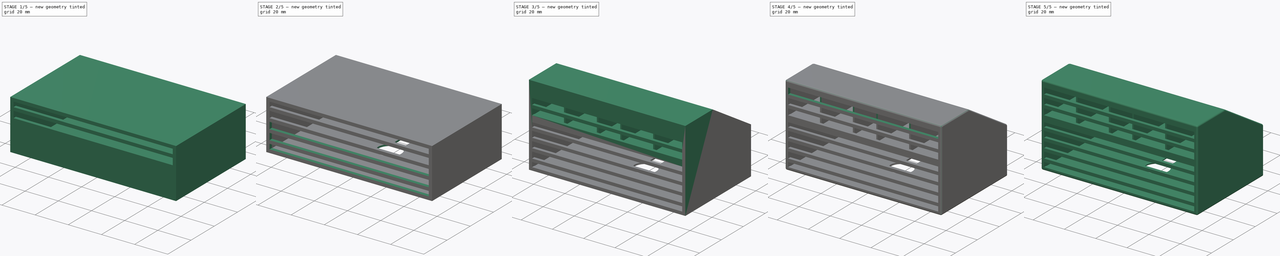
[diagram: build sequence overview — one tinted view per stage of 5, left to right]
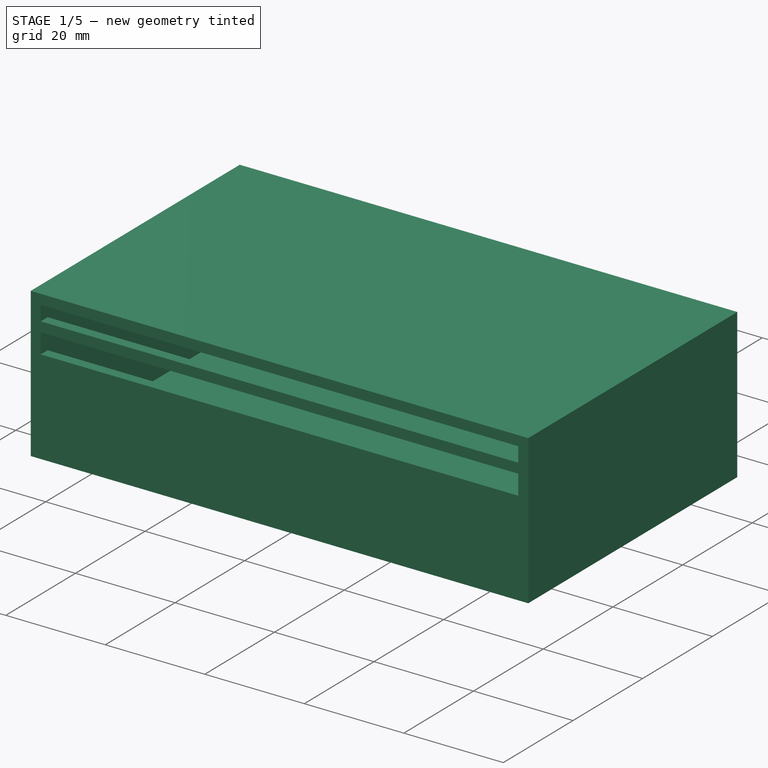
[diagram: stage 1 of 5 — iso view after this stage's code; geometry added in this stage tinted green]
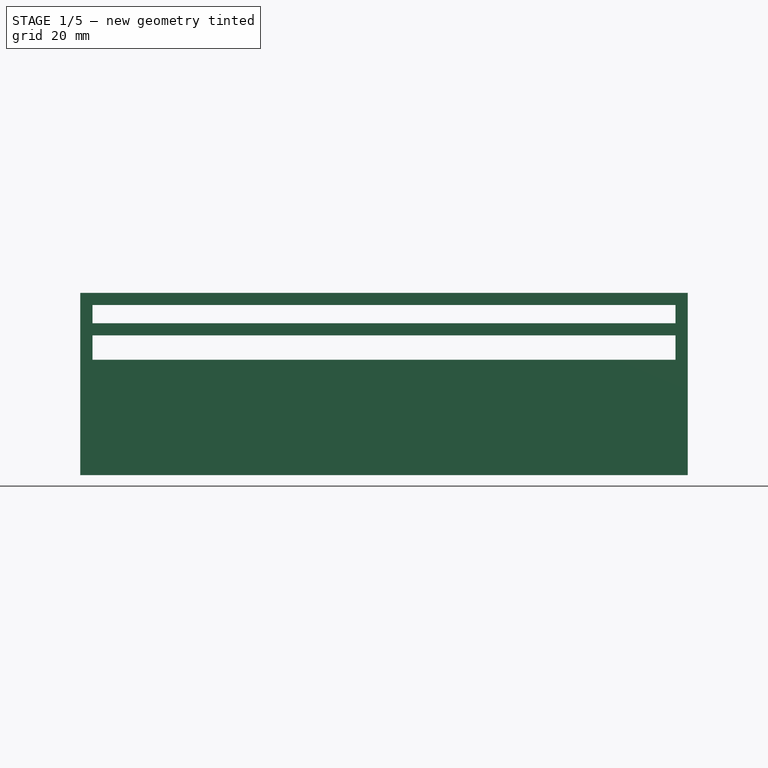
[diagram: stage 1 of 5 — front view after this stage's code; geometry added in this stage tinted green]
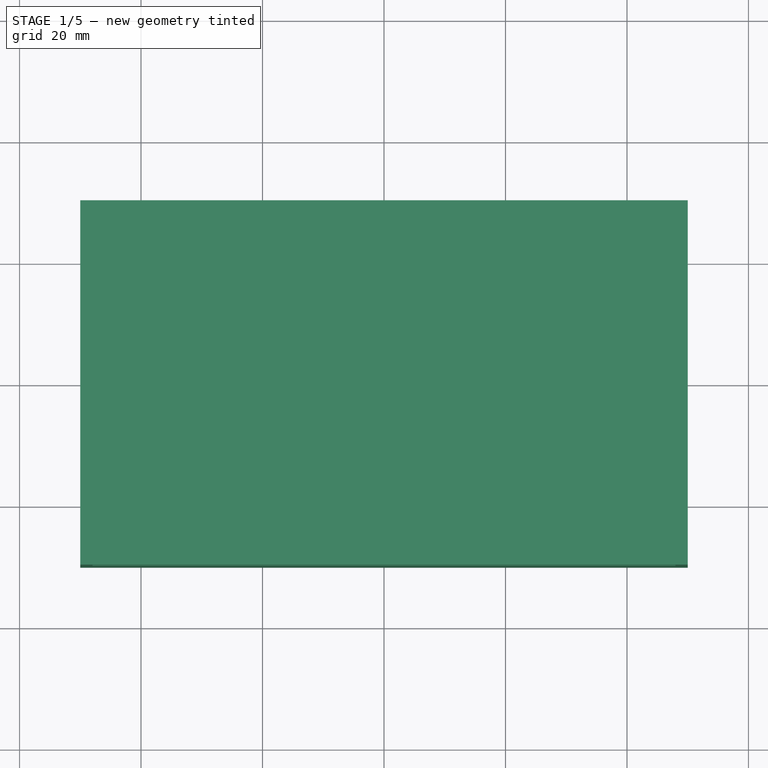
[diagram: stage 1 of 5 — top view after this stage's code; geometry added in this stage tinted green]
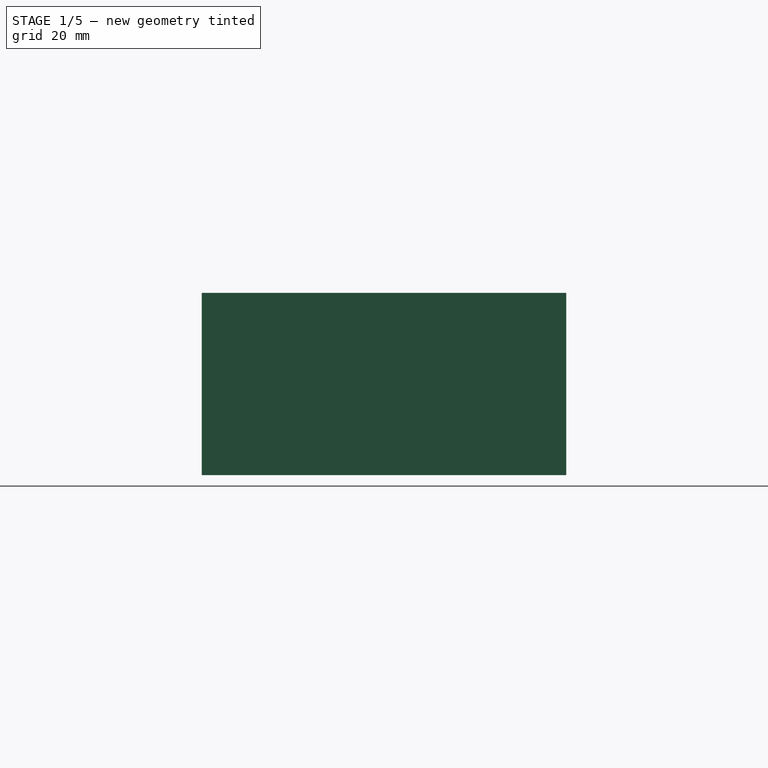
[diagram: stage 1 of 5 — right view after this stage's code; geometry added in this stage tinted green]
FCSTD DOCUMENT  (FreeCAD 0.19R24291 (Git))
Label: bathroom_box
License: All rights reserved
LicenseURL: http://en.wikipedia.org/wiki/All_rights_reserved
objects: Sketcher::SketchObject×13, PartDesign::Pocket×11, PartDesign::Chamfer×5, PartDesign::Pad×2, PartDesign::Fillet×2, PartDesign::Body×1
note: 54 computed .brp shape members not serialized (recipe doc carries the construction recipe); baked Part::Feature solids carry a one-line shape summary decoded from their .brp

FEATURE [Sketcher::SketchObject] Sketch
  FullyConstrained = true
  MapMode = 5
  Support = -> [XY_Plane]
  sketch-geometry (4):
    g0: LineSegment StartX=-50 StartY=30 StartZ=0 EndX=50 EndY=30 EndZ=0
    g1: LineSegment StartX=50 StartY=30 StartZ=0 EndX=50 EndY=-30 EndZ=0
    g2: LineSegment StartX=50 StartY=-30 StartZ=0 EndX=-50 EndY=-30 EndZ=0
    g3: LineSegment StartX=-50 StartY=-30 StartZ=0 EndX=-50 EndY=30 EndZ=0
  constraints (10):
    c: Coincident(g0,g1)
    c: Coincident(g1,g2)
    c: Coincident(g2,g3)
    c: Coincident(g3,g0)
    c: Horizontal(g2)
    c: Vertical(g3)
    c: DistanceY(g1,g1) = 60
    c: DistanceX(g0,g0) = 100
    c: Symmetric(g1,g0,g-1)
    c: Symmetric(g0,g0,g-2)
FEATURE [PartDesign::Pad] Pad  label="Pad_main"
  Direction = (1,1,1)
  Length = 30
  Length2 = 100
  Profile = -> Sketch
  Refine = true
  Type = 0
FEATURE [Sketcher::SketchObject] Sketch001
  AttachmentOffset = pos=(0,0,-30) rot=(0,0,1;0rad)
  ExternalGeometry = -> [Pad]
  FullyConstrained = true
  MapMode = 5
  Placement = pos=(0,30,-6.7e-15) rot=(1,0,0;1.5708rad)
  Support = -> [XZ_Plane]
  sketch-geometry (4):
    g0: LineSegment StartX=-49 StartY=29 StartZ=0 EndX=49 EndY=29 EndZ=0
    g1: LineSegment StartX=49 StartY=29 StartZ=0 EndX=49 EndY=1 EndZ=0
    g2: LineSegment StartX=49 StartY=1 StartZ=0 EndX=-49 EndY=1 EndZ=0
    g3: LineSegment StartX=-49 StartY=1 StartZ=0 EndX=-49 EndY=29 EndZ=0
  constraints (11):
    c: Coincident(g0,g1)
    c: Coincident(g1,g2)
    c: Coincident(g2,g3)
    c: Coincident(g3,g0)
    c: Horizontal(g2)
    c: Vertical(g1)
    c: Vertical(g3)
    c: Symmetric(g0,g0,g-2)
    c: DistanceY(g0,g-3) = 1
    c: DistanceX(g0,g-3) = 1
    c: DistanceY(g-4,g1) = 1
FEATURE [PartDesign::Pocket] Pocket  label="Pocket_main"
  BaseFeature = -> Pad
  Length = 58
  Length2 = 100
  Profile = -> Sketch001
  Refine = true
  Reversed = true
  Type = 0
FEATURE [Sketcher::SketchObject] Sketch002
  AttachmentOffset = pos=(0,0,30) rot=(0,0,1;0rad)
  ExternalGeometry = -> [Pocket]
  FullyConstrained = true
  MapMode = 5
  Placement = pos=(0,-30,6.7e-15) rot=(1,0,0;1.5708rad)
  Support = -> [XZ_Plane]
  sketch-geometry (4):
    g0: LineSegment StartX=-48 StartY=28 StartZ=0 EndX=48 EndY=28 EndZ=0
    g1: LineSegment StartX=48 StartY=28 StartZ=0 EndX=48 EndY=25 EndZ=0
    g2: LineSegment StartX=48 StartY=25 StartZ=0 EndX=-48 EndY=25 EndZ=0
    g3: LineSegment StartX=-48 StartY=25 StartZ=0 EndX=-48 EndY=28 EndZ=0
  constraints (12):
    c: Coincident(g0,g1)
    c: Coincident(g1,g2)
    c: Coincident(g2,g3)
    c: Coincident(g3,g0)
    c: Horizontal(g0)
    c: Horizontal(g2)
    c: Vertical(g1)
    c: Vertical(g3)
    c: DistanceY(g1,g1) = 3
    c: DistanceX(g2,g2) = 96
    c: DistanceX(g0,g-3) = 2
    c: DistanceY(g0,g-3) = 2
FEATURE [PartDesign::Pocket] Pocket001  label="Pocket_bottom_001"
  BaseFeature = -> Pocket
  Length = 5
  Length2 = 100
  Profile = -> Sketch002
  Refine = true
  Type = 1
FEATURE [Sketcher::SketchObject] Sketch003
  AttachmentOffset = pos=(0,0,30) rot=(0,0,1;0rad)
  ExternalGeometry = -> [Pocket001]
  FullyConstrained = true
  MapMode = 5
  Placement = pos=(0,-30,6.7e-15) rot=(1,0,0;1.5708rad)
  Support = -> [XZ_Plane]
  sketch-geometry (4):
    g0: LineSegment StartX=-48 StartY=23 StartZ=0 EndX=48 EndY=23 EndZ=0
    g1: LineSegment StartX=48 StartY=23 StartZ=0 EndX=48 EndY=19 EndZ=0
    g2: LineSegment StartX=48 StartY=19 StartZ=0 EndX=-48 EndY=19 EndZ=0
    g3: LineSegment StartX=-48 StartY=19 StartZ=0 EndX=-48 EndY=23 EndZ=0
  constraints (12):
    c: Coincident(g0,g1)
    c: Coincident(g1,g2)
    c: Coincident(g2,g3)
    c: Coincident(g3,g0)
    c: Horizontal(g0)
    c: Horizontal(g2)
    c: Vertical(g1)
    c: Vertical(g3)
    c: DistanceY(g1,g1) = 4
    c: DistanceX(g2,g2) = 96
    c: DistanceY(g0,g-3) = 7
    c: DistanceX(g0,g-3) = 2
FEATURE [PartDesign::Pocket] Pocket002  label="Pocket_bottom_002"
  BaseFeature = -> Pocket001
  Length = 5
  Length2 = 100
  Profile = -> Sketch003
  Refine = true
  Type = 1
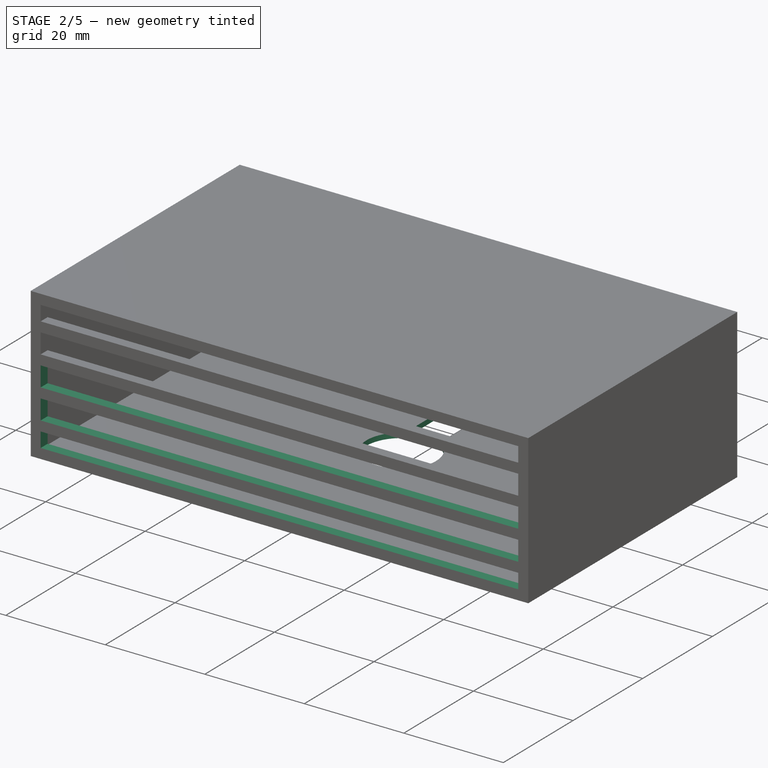
[diagram: stage 2 of 5 — iso view after this stage's code; geometry added in this stage tinted green]
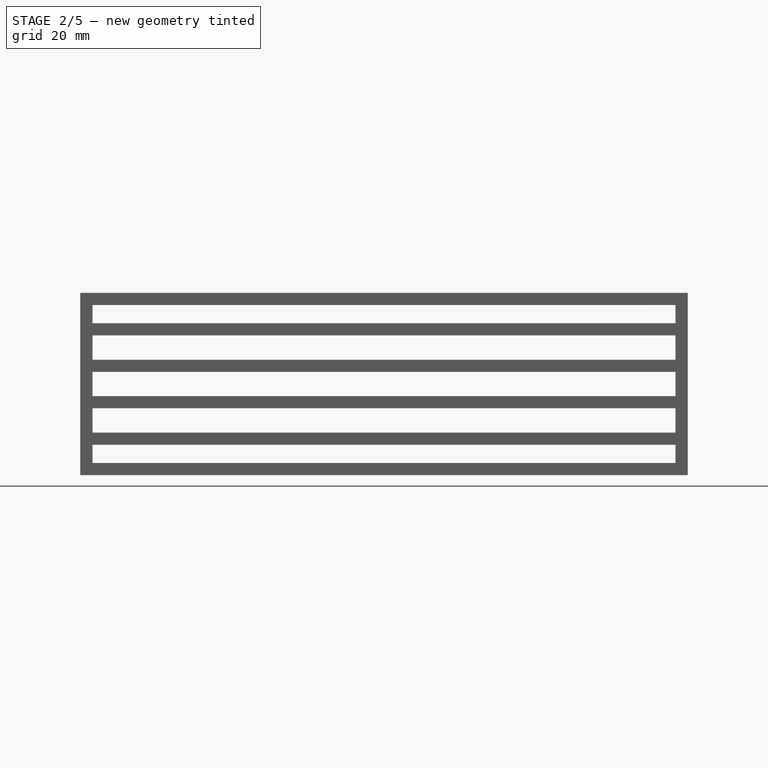
[diagram: stage 2 of 5 — front view after this stage's code; geometry added in this stage tinted green]
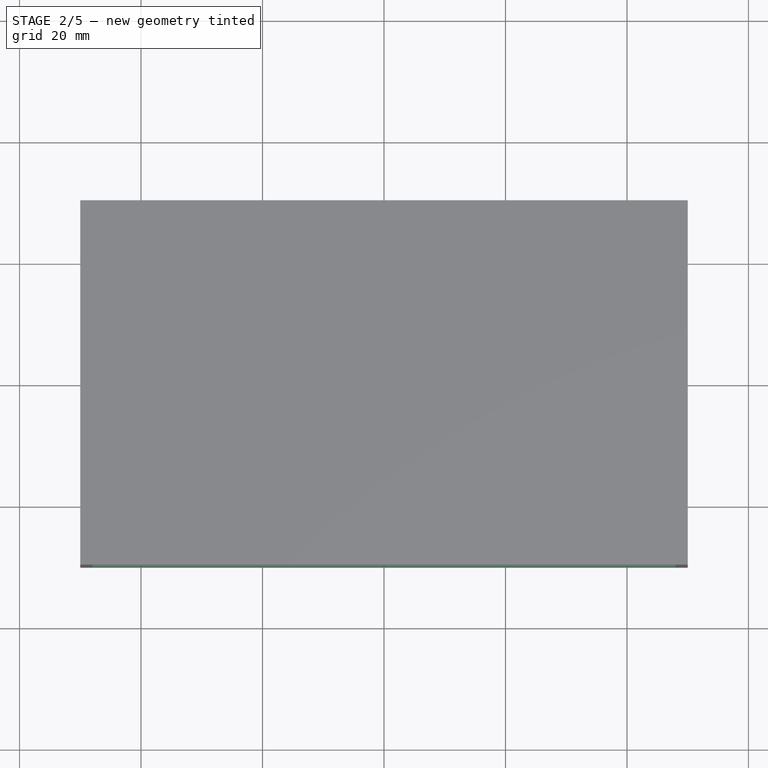
[diagram: stage 2 of 5 — top view after this stage's code; geometry added in this stage tinted green]
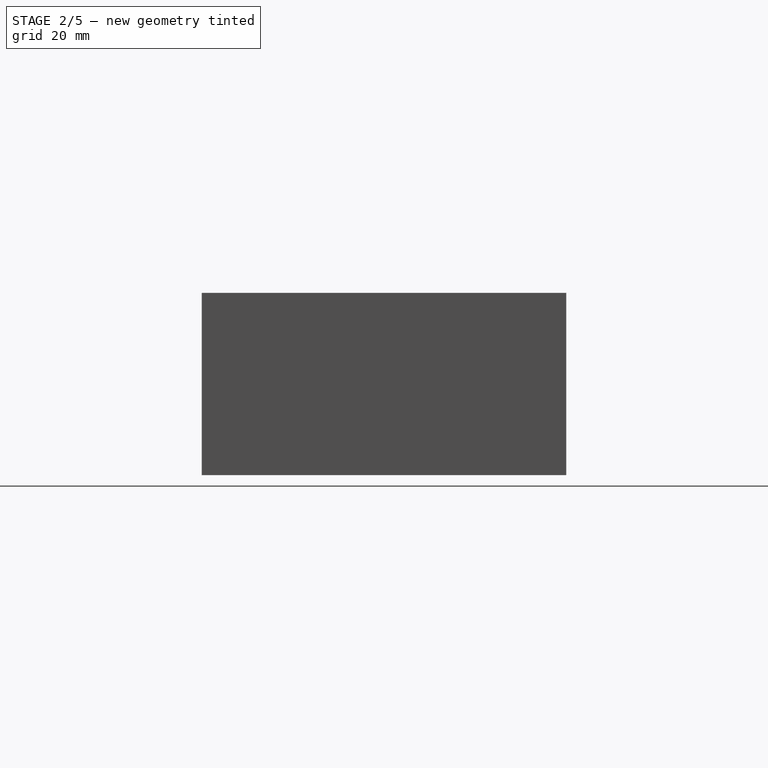
[diagram: stage 2 of 5 — right view after this stage's code; geometry added in this stage tinted green]
FEATURE [Sketcher::SketchObject] Sketch007
  AttachmentOffset = pos=(0,0,30) rot=(0,0,1;0rad)
  ExternalGeometry = -> [Pocket002]
  FullyConstrained = true
  MapMode = 5
  Placement = pos=(0,-30,6.7e-15) rot=(1,0,0;1.5708rad)
  Support = -> [XZ_Plane]
  sketch-geometry (4):
    g0: LineSegment StartX=-48 StartY=17 StartZ=0 EndX=48 EndY=17 EndZ=0
    g1: LineSegment StartX=48 StartY=17 StartZ=0 EndX=48 EndY=13 EndZ=0
    g2: LineSegment StartX=48 StartY=13 StartZ=0 EndX=-48 EndY=13 EndZ=0
    g3: LineSegment StartX=-48 StartY=13 StartZ=0 EndX=-48 EndY=17 EndZ=0
  constraints (12):
    c: Coincident(g0,g1)
    c: Coincident(g1,g2)
    c: Coincident(g2,g3)
    c: Coincident(g3,g0)
    c: Horizontal(g0)
    c: Horizontal(g2)
    c: Vertical(g1)
    c: Vertical(g3)
    c: DistanceY(g1,g1) = 4
    c: DistanceX(g2,g2) = 96
    c: DistanceX(g0,g-3) = 2
    c: DistanceY(g0,g-3) = 13
FEATURE [PartDesign::Pocket] Pocket003  label="Pocket_bottom_003"
  BaseFeature = -> Pocket002
  Length = 5
  Length2 = 100
  Profile = -> Sketch007
  Refine = true
  Type = 1
FEATURE [Sketcher::SketchObject] Sketch008
  AttachmentOffset = pos=(0,0,30) rot=(0,0,1;0rad)
  ExternalGeometry = -> [Pocket002]
  FullyConstrained = true
  MapMode = 5
  Placement = pos=(0,-30,6.7e-15) rot=(1,0,0;1.5708rad)
  Support = -> [XZ_Plane]
  sketch-geometry (4):
    g0: LineSegment StartX=-48 StartY=11 StartZ=0 EndX=48 EndY=11 EndZ=0
    g1: LineSegment StartX=48 StartY=11 StartZ=0 EndX=48 EndY=7 EndZ=0
    g2: LineSegment StartX=48 StartY=7 StartZ=0 EndX=-48 EndY=7 EndZ=0
    g3: LineSegment StartX=-48 StartY=7 StartZ=0 EndX=-48 EndY=11 EndZ=0
  constraints (12):
    c: Coincident(g0,g1)
    c: Coincident(g1,g2)
    c: Coincident(g2,g3)
    c: Coincident(g3,g0)
    c: Horizontal(g0)
    c: Horizontal(g2)
    c: Vertical(g1)
    c: Vertical(g3)
    c: DistanceY(g1,g1) = 4
    c: DistanceX(g2,g2) = 96
    c: DistanceX(g0,g-3) = 2
    c: DistanceY(g0,g-3) = 19
FEATURE [PartDesign::Pocket] Pocket004  label="Pocket_bottom_004"
  BaseFeature = -> Pocket003
  Length = 5
  Length2 = 100
  Profile = -> Sketch008
  Refine = true
  Type = 1
FEATURE [Sketcher::SketchObject] Sketch009
  AttachmentOffset = pos=(0,0,30) rot=(0,0,1;0rad)
  ExternalGeometry = -> [Pocket002]
  FullyConstrained = true
  MapMode = 5
  Placement = pos=(0,-30,6.7e-15) rot=(1,0,0;1.5708rad)
  Support = -> [XZ_Plane]
  sketch-geometry (4):
    g0: LineSegment StartX=-48 StartY=5 StartZ=0 EndX=48 EndY=5 EndZ=0
    g1: LineSegment StartX=48 StartY=5 StartZ=0 EndX=48 EndY=2 EndZ=0
    g2: LineSegment StartX=48 StartY=2 StartZ=0 EndX=-48 EndY=2 EndZ=0
    g3: LineSegment StartX=-48 StartY=2 StartZ=0 EndX=-48 EndY=5 EndZ=0
  constraints (12):
    c: Coincident(g0,g1)
    c: Coincident(g1,g2)
    c: Coincident(g2,g3)
    c: Coincident(g3,g0)
    c: Horizontal(g0)
    c: Horizontal(g2)
    c: Vertical(g1)
    c: Vertical(g3)
    c: DistanceY(g1,g1) = 3
    c: DistanceX(g2,g2) = 96
    c: DistanceX(g0,g-3) = 2
    c: DistanceY(g0,g-3) = 25
FEATURE [PartDesign::Pocket] Pocket005  label="Pocket_bottom_005"
  BaseFeature = -> Pocket004
  Length = 5
  Length2 = 100
  Profile = -> Sketch009
  Refine = true
  Type = 1
FEATURE [Sketcher::SketchObject] Sketch010
  FullyConstrained = true
  MapMode = 5
  Support = -> [XY_Plane]
  sketch-geometry (4):
    g0: LineSegment StartX=-3.5 StartY=21.0622 StartZ=0 EndX=3.5 EndY=21.0622 EndZ=0
    g1: LineSegment StartX=3.5 StartY=21.0622 StartZ=0 EndX=3.5 EndY=11.0622 EndZ=0
    g2: ArcOfCircle CenterX=0 CenterY=5 CenterZ=0 NormalX=0 NormalY=0 NormalZ=1 AngleXU=0 Radius=7 StartAngle=2.0944 EndAngle=7.33038
    g3: LineSegment StartX=-3.5 StartY=11.0622 StartZ=0 EndX=-3.5 EndY=21.0622 EndZ=0
  constraints (12):
    c: Coincident(g0,g1)
    c: Vertical(g1)
    c: Coincident(g2,g3)
    c: Coincident(g3,g0)
    c: Vertical(g3)
    c: Symmetric(g0,g0,g-2)
    c: DistanceX(g0,g0) = 7
    c: Coincident(g2,g1)
    c: PointOnObject(g2,g-2)
    c: Radius(g2) = 7
    c: DistanceY(g2,g-1) = -5
    c: DistanceY(g1,g0) = 10
FEATURE [PartDesign::Pocket] Pocket006  label="Pocket_hanger"
  BaseFeature = -> Pocket005
  Length = 2
  Length2 = 100
  Profile = -> Sketch010
  Refine = true
  Reversed = true
  Type = 0
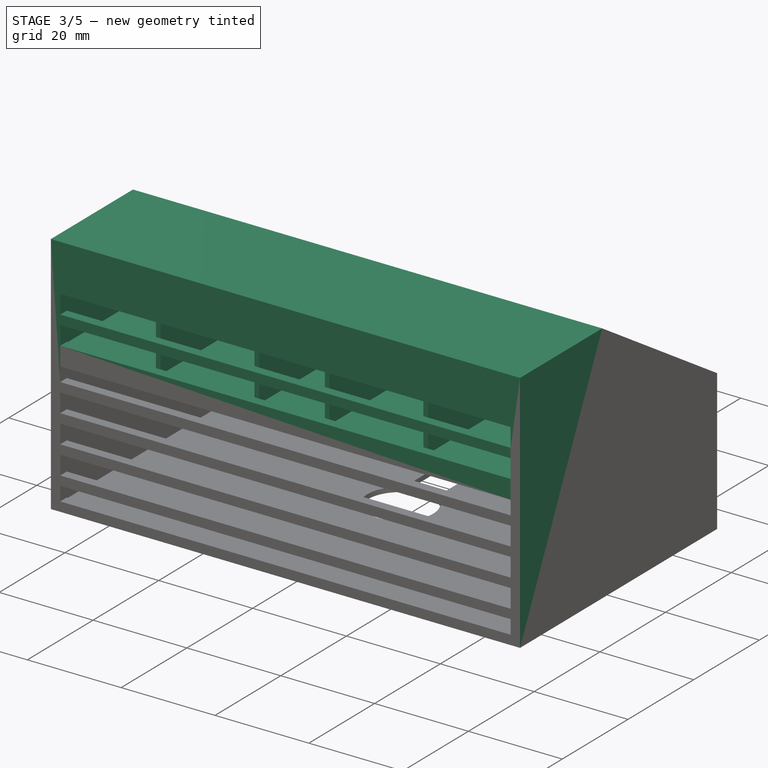
[diagram: stage 3 of 5 — iso view after this stage's code; geometry added in this stage tinted green]
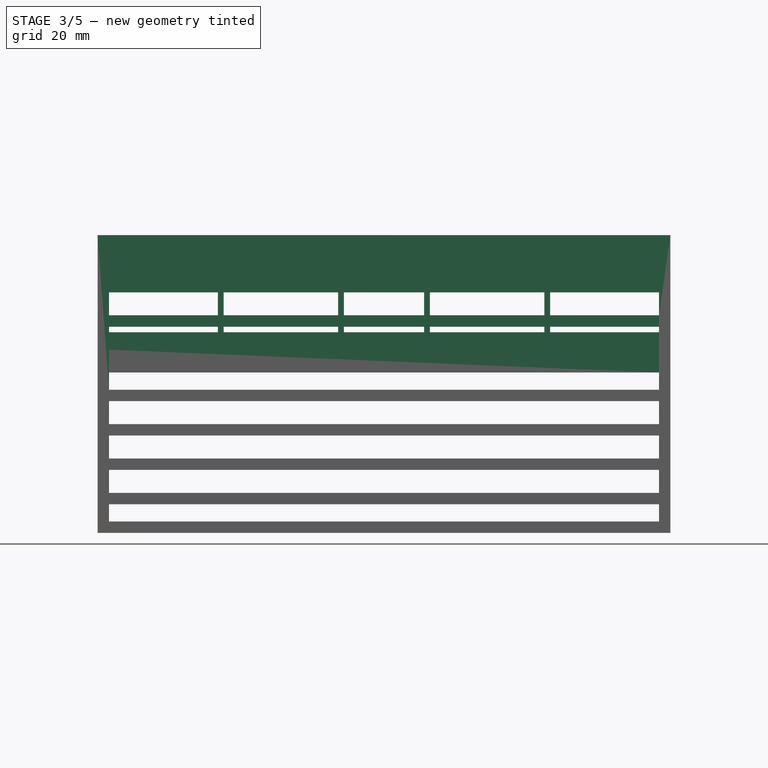
[diagram: stage 3 of 5 — front view after this stage's code; geometry added in this stage tinted green]
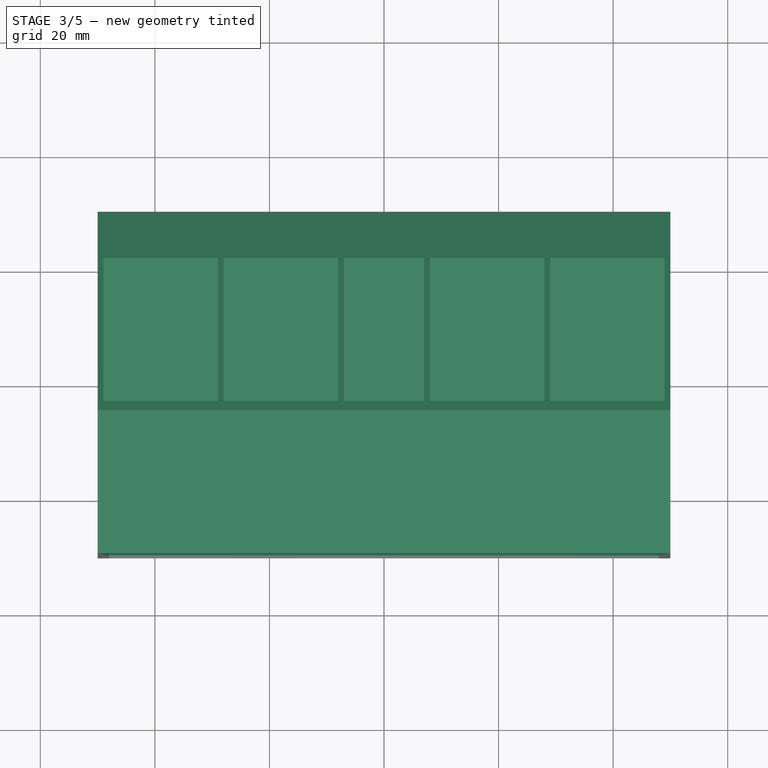
[diagram: stage 3 of 5 — top view after this stage's code; geometry added in this stage tinted green]
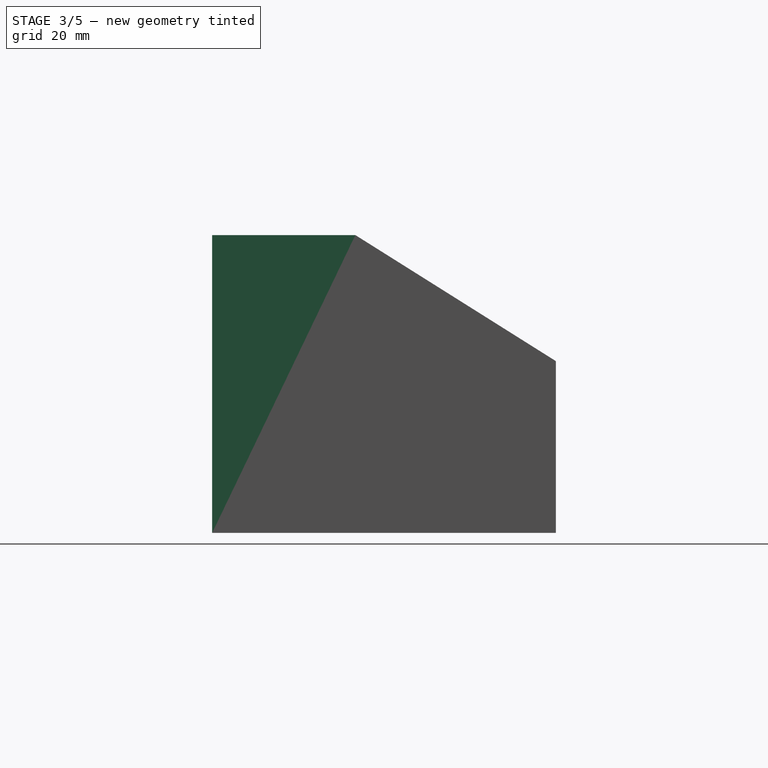
[diagram: stage 3 of 5 — right view after this stage's code; geometry added in this stage tinted green]
FEATURE [Sketcher::SketchObject] Sketch011
  AttachmentOffset = pos=(0,0,50) rot=(0,0,1;0rad)
  ExternalGeometry = -> [Pocket006]
  FullyConstrained = true
  MapMode = 5
  Placement = pos=(50,-1.11e-14,1.11e-14) rot=(0.57735,0.57735,0.57735;2.0944rad)
  Support = -> [YZ_Plane]
  sketch-geometry (4):
    g0: LineSegment StartX=-30 StartY=52 StartZ=0 EndX=-30 EndY=30 EndZ=0
    g1: LineSegment StartX=-30 StartY=30 StartZ=0 EndX=30 EndY=30 EndZ=0
    g2: LineSegment StartX=30 StartY=30 StartZ=0 EndX=-5 EndY=52 EndZ=0
    g3: LineSegment StartX=-5 StartY=52 StartZ=0 EndX=-30 EndY=52 EndZ=0
  constraints (10):
    c: Vertical(g0)
    c: Coincident(g0,g1)
    c: Coincident(g1,g2)
    c: Coincident(g2,g3)
    c: Coincident(g3,g0)
    c: Horizontal(g3)
    c: Coincident(g1,g-3)
    c: Coincident(g0,g-4)
    c: DistanceY(g0,g0) = 22
    c: DistanceX(g3,g3) = 25
FEATURE [PartDesign::Pad] Pad001  label="Pad_front"
  BaseFeature = -> Pocket006
  Direction = (1,1,1)
  Length = 100
  Length2 = 100
  Profile = -> Sketch011
  Refine = true
  Reversed = true
  Type = 0
FEATURE [Sketcher::SketchObject] Sketch012
  AttachmentOffset = pos=(0,0,28) rot=(0,0,1;0rad)
  ExternalGeometry = -> [Pad001]
  FullyConstrained = true
  MapMode = 5
  Placement = pos=(0,-28,6.2e-15) rot=(1,0,0;1.5708rad)
  Support = -> [XZ_Plane]
  sketch-geometry (20):
    g0: LineSegment StartX=29 StartY=51 StartZ=0 EndX=49 EndY=51 EndZ=0
    g1: LineSegment StartX=49 StartY=51 StartZ=0 EndX=49 EndY=31 EndZ=0
    g2: LineSegment StartX=49 StartY=31 StartZ=0 EndX=29 EndY=31 EndZ=0
    g3: LineSegment StartX=29 StartY=31 StartZ=0 EndX=29 EndY=51 EndZ=0
    g4: LineSegment StartX=8 StartY=51 StartZ=0 EndX=28 EndY=51 EndZ=0
    g5: LineSegment StartX=28 StartY=51 StartZ=0 EndX=28 EndY=31 EndZ=0
    g6: LineSegment StartX=28 StartY=31 StartZ=0 EndX=8 EndY=31 EndZ=0
    g7: LineSegment StartX=8 StartY=31 StartZ=0 EndX=8 EndY=51 EndZ=0
    g8: LineSegment StartX=-49 StartY=51 StartZ=0 EndX=-29 EndY=51 EndZ=0
    g9: LineSegment StartX=-29 StartY=51 StartZ=0 EndX=-29 EndY=31 EndZ=0
    g10: LineSegment StartX=-29 StartY=31 StartZ=0 EndX=-49 EndY=31 EndZ=0
    g11: LineSegment StartX=-49 StartY=31 StartZ=0 EndX=-49 EndY=51 EndZ=0
    g12: LineSegment StartX=-28 StartY=51 StartZ=0 EndX=-8 EndY=51 EndZ=0
    g13: LineSegment StartX=-8 StartY=51 StartZ=0 EndX=-8 EndY=31 EndZ=0
    g14: LineSegment StartX=-8 StartY=31 StartZ=0 EndX=-28 EndY=31 EndZ=0
    g15: LineSegment StartX=-28 StartY=31 StartZ=0 EndX=-28 EndY=51 EndZ=0
    g16: LineSegment StartX=-7 StartY=51 StartZ=0 EndX=7 EndY=51 EndZ=0
    g17: LineSegment StartX=7 StartY=51 StartZ=0 EndX=7 EndY=31 EndZ=0
    g18: LineSegment StartX=7 StartY=31 StartZ=0 EndX=-7 EndY=31 EndZ=0
    g19: LineSegment StartX=-7 StartY=31 StartZ=0 EndX=-7 EndY=51 EndZ=0
  constraints (60):
    c: Coincident(g0,g1)
    c: Coincident(g1,g2)
    c: Coincident(g2,g3)
    c: Coincident(g3,g0)
    c: Horizontal(g0)
    c: Horizontal(g2)
    c: Vertical(g1)
    c: Vertical(g3)
    c: DistanceX(g0,g0) = 20
    c: DistanceY(g1,g1) = 20
    c: DistanceY(g0,g-3) = 1
    c: DistanceX(g0,g-3) = 1
    c: Coincident(g4,g5)
    c: Coincident(g5,g6)
    c: Coincident(g6,g7)
    c: Coincident(g7,g4)
    c: Horizontal(g4)
    c: Horizontal(g6)
    c: Vertical(g5)
    c: Vertical(g7)
    c: Equal(g3,g5)
    c: Equal(g0,g4)
    c: Horizontal(g4,g0)
    c: DistanceX(g5,g2) = 1
    c: Coincident(g8,g9)
    c: Coincident(g9,g10)
    c: Coincident(g10,g11)
    c: Coincident(g11,g8)
    c: Horizontal(g8)
    c: Horizontal(g10)
    c: Vertical(g9)
    c: Vertical(g11)
    c: Equal(g9,g7)
    c: Equal(g8,g4)
    c: Horizontal(g8,g4)
    c: DistanceX(g-4,g8) = 1
    c: Coincident(g12,g13)
    c: Coincident(g13,g14)
    c: Coincident(g14,g15)
    c: Coincident(g15,g12)
    c: Horizontal(g12)
    c: Horizontal(g14)
    c: Vertical(g13)
    c: Vertical(g15)
    c: Equal(g15,g9)
    c: Equal(g8,g12)
    c: Horizontal(g12,g8)
    c: DistanceX(g8,g12) = 1
    c: Coincident(g16,g17)
    c: Coincident(g17,g18)
    c: Coincident(g18,g19)
    c: Coincident(g19,g16)
    c: Horizontal(g16)
    c: Horizontal(g18)
    c: Vertical(g17)
    c: Vertical(g19)
    c: Equal(g17,g7)
    c: Horizontal(g16,g4)
    c: DistanceX(g16,g4) = 1
    c: DistanceX(g12,g16) = 1
FEATURE [PartDesign::Pocket] Pocket007  label="Pocket_front"
  BaseFeature = -> Pad001
  Length = 50
  Length2 = 100
  Profile = -> Sketch012
  Refine = true
  Type = 0
FEATURE [Sketcher::SketchObject] Sketch013
  AttachmentOffset = pos=(0,0,30) rot=(0,0,1;0rad)
  ExternalGeometry = -> [Pocket002]
  FullyConstrained = true
  MapMode = 5
  Placement = pos=(0,-30,6.7e-15) rot=(1,0,0;1.5708rad)
  Support = -> [XZ_Plane]
  sketch-geometry (4):
    g0: LineSegment StartX=-48 StartY=36 StartZ=0 EndX=48 EndY=36 EndZ=0
    g1: LineSegment StartX=48 StartY=36 StartZ=0 EndX=48 EndY=32 EndZ=0
    g2: LineSegment StartX=48 StartY=32 StartZ=0 EndX=-48 EndY=32 EndZ=0
    g3: LineSegment StartX=-48 StartY=32 StartZ=0 EndX=-48 EndY=36 EndZ=0
  constraints (12):
    c: Coincident(g0,g1)
    c: Coincident(g1,g2)
    c: Coincident(g2,g3)
    c: Coincident(g3,g0)
    c: Horizontal(g0)
    c: Horizontal(g2)
    c: Vertical(g1)
    c: Vertical(g3)
    c: DistanceY(g1,g1) = 4
    c: DistanceX(g2,g2) = 96
    c: DistanceX(g0,g-3) = 2
    c: DistanceY(g0,g-3) = -6
FEATURE [PartDesign::Pocket] Pocket008  label="Pocket_front_001"
  BaseFeature = -> Pocket007
  Length = 2
  Length2 = 100
  Profile = -> Sketch013
  Refine = true
  Type = 0
FEATURE [Sketcher::SketchObject] Sketch014
  AttachmentOffset = pos=(0,0,30) rot=(0,0,1;0rad)
  ExternalGeometry = -> [Pocket002]
  FullyConstrained = true
  MapMode = 5
  Placement = pos=(0,-30,6.7e-15) rot=(1,0,0;1.5708rad)
  Support = -> [XZ_Plane]
  sketch-geometry (4):
    g0: LineSegment StartX=-48 StartY=42 StartZ=0 EndX=48 EndY=42 EndZ=0
    g1: LineSegment StartX=48 StartY=42 StartZ=0 EndX=48 EndY=38 EndZ=0
    g2: LineSegment StartX=48 StartY=38 StartZ=0 EndX=-48 EndY=38 EndZ=0
    g3: LineSegment StartX=-48 StartY=38 StartZ=0 EndX=-48 EndY=42 EndZ=0
  constraints (12):
    c: Coincident(g0,g1)
    c: Coincident(g1,g2)
    c: Coincident(g2,g3)
    c: Coincident(g3,g0)
    c: Horizontal(g0)
    c: Horizontal(g2)
    c: Vertical(g1)
    c: Vertical(g3)
    c: DistanceY(g1,g1) = 4
    c: DistanceX(g2,g2) = 96
    c: DistanceX(g0,g-3) = 2
    c: DistanceY(g0,g-3) = -12
FEATURE [PartDesign::Pocket] Pocket009  label="Pocket_front_002"
  BaseFeature = -> Pocket008
  Length = 2
  Length2 = 100
  Profile = -> Sketch014
  Refine = true
  Type = 0
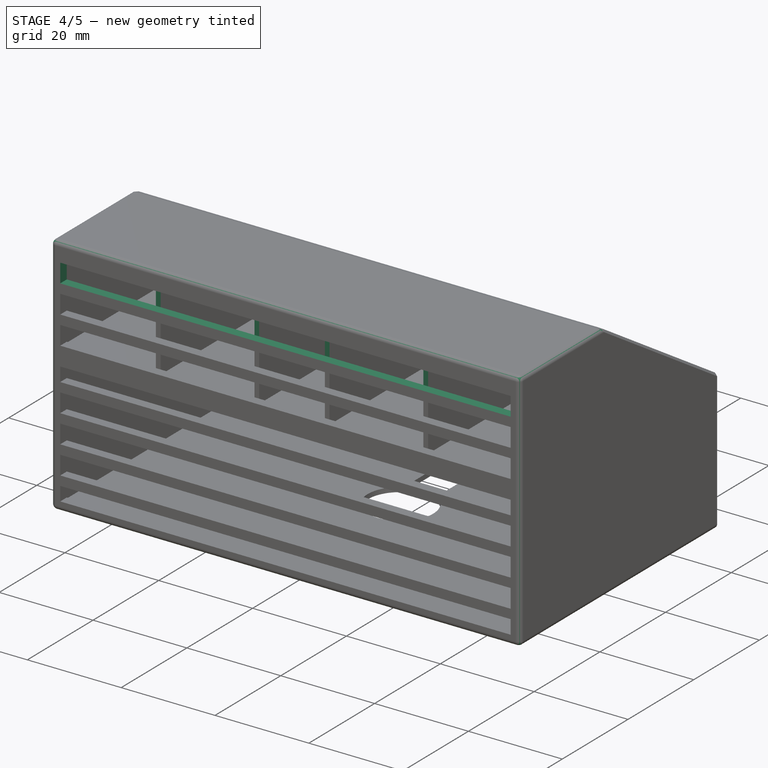
[diagram: stage 4 of 5 — iso view after this stage's code; geometry added in this stage tinted green]
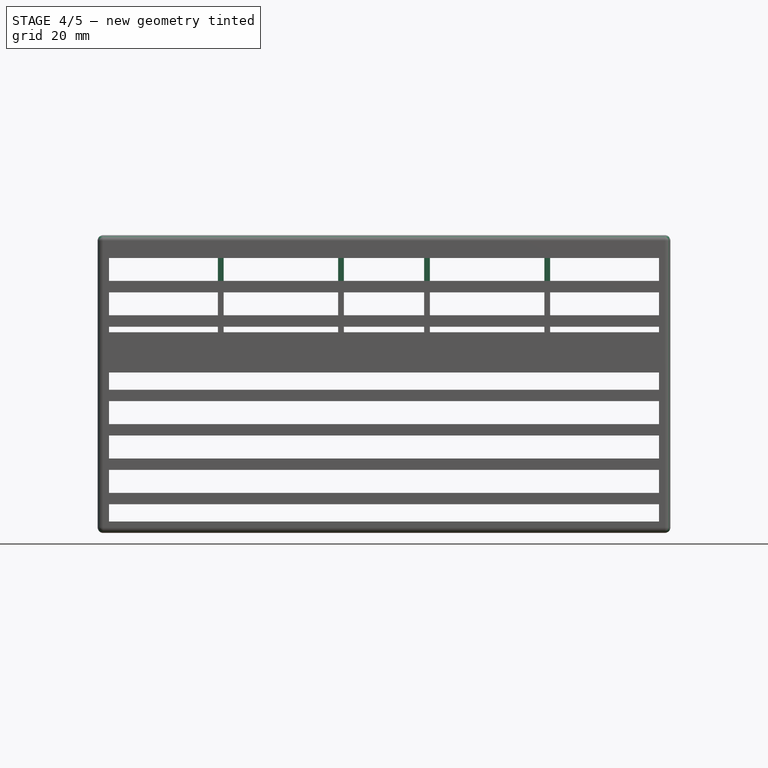
[diagram: stage 4 of 5 — front view after this stage's code; geometry added in this stage tinted green]
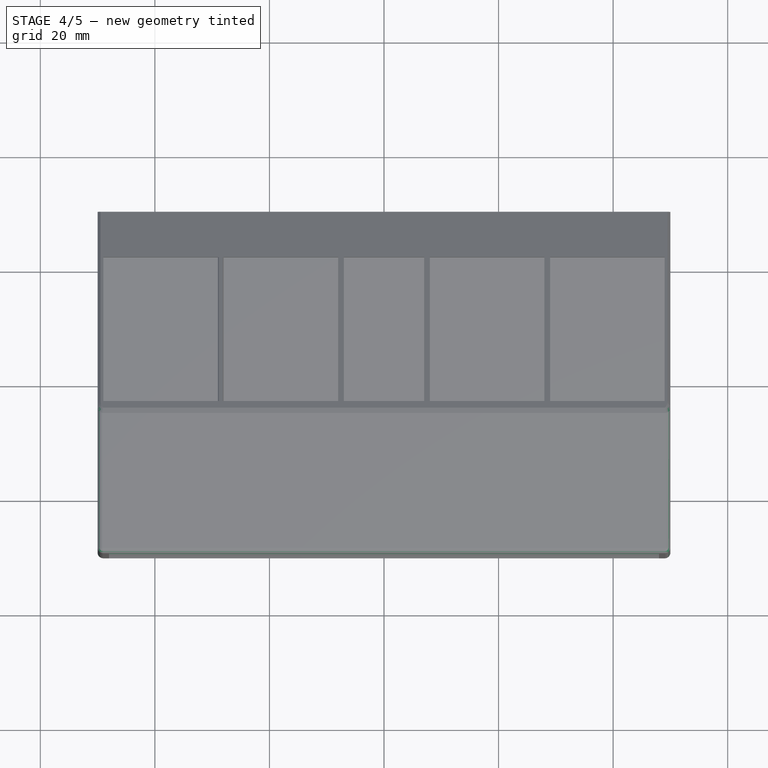
[diagram: stage 4 of 5 — top view after this stage's code; geometry added in this stage tinted green]
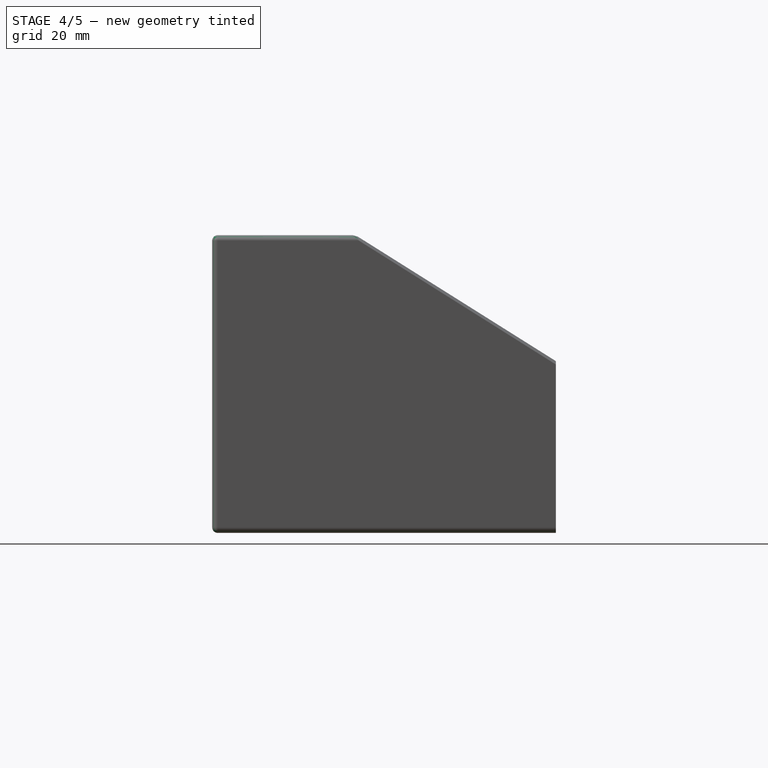
[diagram: stage 4 of 5 — right view after this stage's code; geometry added in this stage tinted green]
FEATURE [Sketcher::SketchObject] Sketch015
  AttachmentOffset = pos=(0,0,30) rot=(0,0,1;0rad)
  ExternalGeometry = -> [Pocket002]
  FullyConstrained = true
  MapMode = 5
  Placement = pos=(0,-30,6.7e-15) rot=(1,0,0;1.5708rad)
  Support = -> [XZ_Plane]
  sketch-geometry (4):
    g0: LineSegment StartX=-48 StartY=48 StartZ=0 EndX=48 EndY=48 EndZ=0
    g1: LineSegment StartX=48 StartY=48 StartZ=0 EndX=48 EndY=44 EndZ=0
    g2: LineSegment StartX=48 StartY=44 StartZ=0 EndX=-48 EndY=44 EndZ=0
    g3: LineSegment StartX=-48 StartY=44 StartZ=0 EndX=-48 EndY=48 EndZ=0
  constraints (12):
    c: Coincident(g0,g1)
    c: Coincident(g1,g2)
    c: Coincident(g2,g3)
    c: Coincident(g3,g0)
    c: Horizontal(g0)
    c: Horizontal(g2)
    c: Vertical(g1)
    c: Vertical(g3)
    c: DistanceY(g1,g1) = 4
    c: DistanceX(g2,g2) = 96
    c: DistanceX(g0,g-3) = 2
    c: DistanceY(g0,g-3) = -18
FEATURE [PartDesign::Pocket] Pocket010
  BaseFeature = -> Pocket009
  Length = 2
  Length2 = 100
  Profile = -> Sketch015
  Refine = true
  Type = 0
FEATURE [PartDesign::Fillet] Fillet
  Base = -> Pocket010 [Edge10,Edge41,Edge13,Edge42,Edge55,Edge14,Edge9,Edge12]
  BaseFeature = -> Pocket010
  Radius = 1
  Refine = true
  SupportTransform = false
FEATURE [PartDesign::Chamfer] Chamfer
  Angle = 45
  Base = -> Fillet [Edge19,Edge11]
  BaseFeature = -> Fillet
  ChamferType = 0
  FlipDirection = false
  Refine = true
  Size = 0.5
  Size2 = 1
  SupportTransform = false
FEATURE [PartDesign::Chamfer] Chamfer001
  Angle = 45
  Base = -> Chamfer [Edge32,Edge30]
  BaseFeature = -> Chamfer
  ChamferType = 0
  FlipDirection = false
  Refine = true
  Size = 0.2
  Size2 = 1
  SupportTransform = false
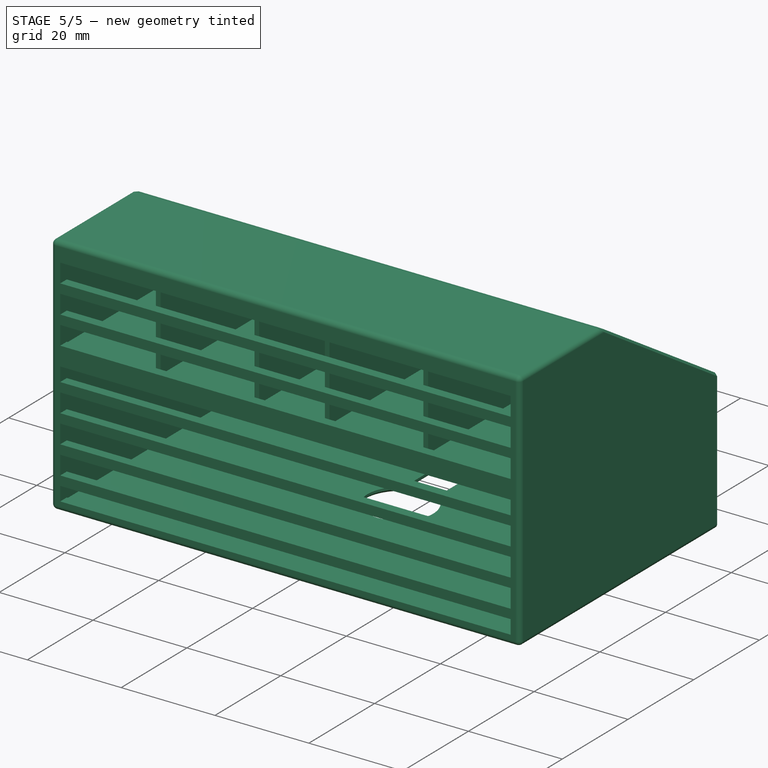
[diagram: stage 5 of 5 — iso view after this stage's code; geometry added in this stage tinted green]
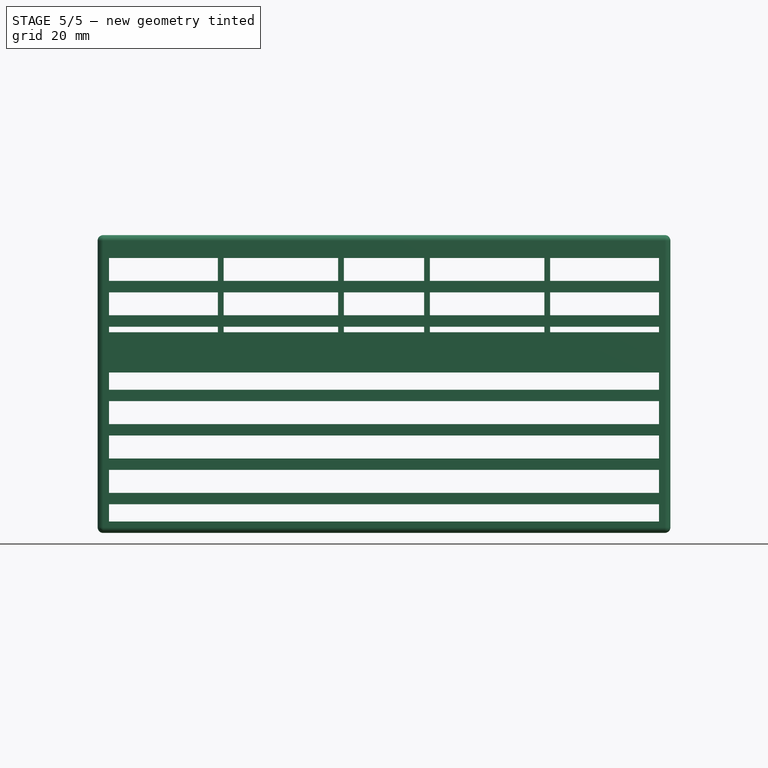
[diagram: stage 5 of 5 — front view after this stage's code; geometry added in this stage tinted green]
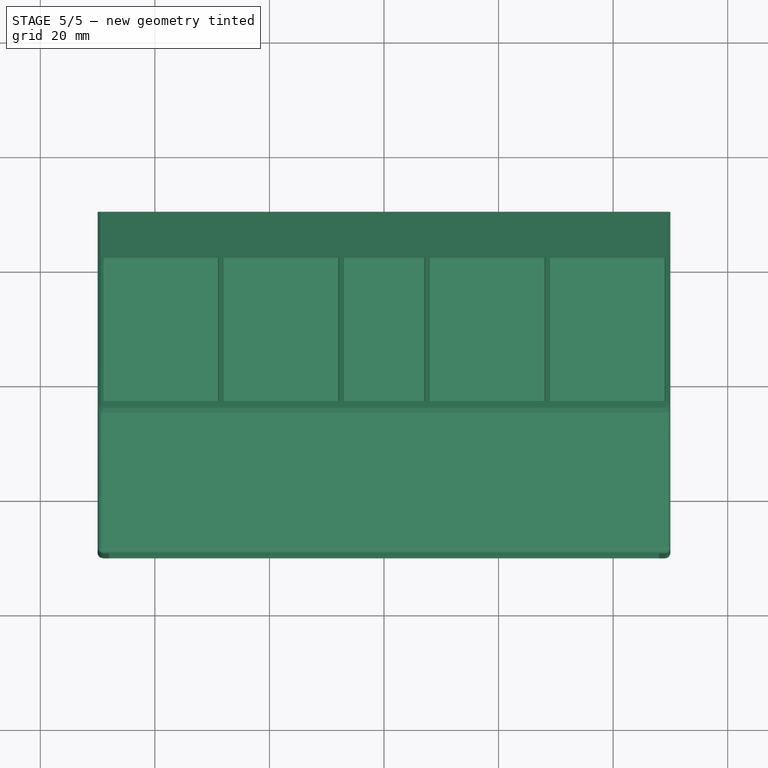
[diagram: stage 5 of 5 — top view after this stage's code; geometry added in this stage tinted green]
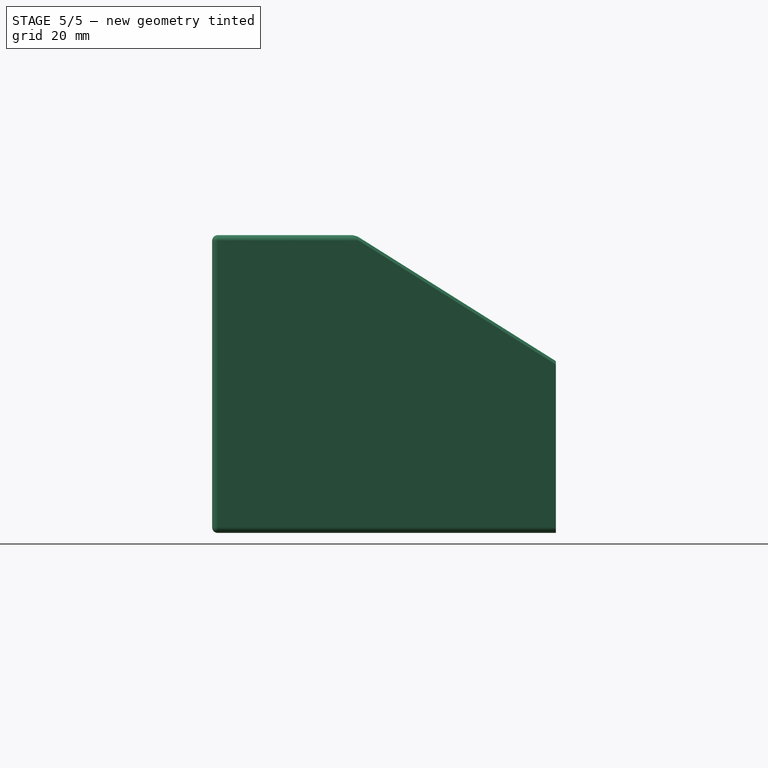
[diagram: stage 5 of 5 — right view after this stage's code; geometry added in this stage tinted green]
FEATURE [PartDesign::Chamfer] Chamfer002
  Angle = 45
  Base = -> Chamfer001 [Edge15,Edge21,Edge30,Edge17,Edge19,Edge25]
  BaseFeature = -> Chamfer001
  ChamferType = 0
  FlipDirection = false
  Refine = true
  Size = 0.2
  Size2 = 1
  SupportTransform = false
FEATURE [PartDesign::Chamfer] Chamfer003
  Angle = 45
  Base = -> Chamfer002 [Edge42,Edge12]
  BaseFeature = -> Chamfer002
  ChamferType = 0
  FlipDirection = false
  Refine = true
  Size = 0.2
  Size2 = 1
  SupportTransform = false
FEATURE [PartDesign::Fillet] Fillet001
  Base = -> Chamfer003 [Edge81,Edge80,Edge82,Edge83]
  BaseFeature = -> Chamfer003
  Radius = 0.5
  Refine = true
  SupportTransform = false
FEATURE [PartDesign::Chamfer] Chamfer004
  Angle = 45
  Base = -> Fillet001 [Edge80,Edge79,Edge81]
  BaseFeature = -> Fillet001
  ChamferType = 0
  FlipDirection = false
  Refine = true
  Size = 0.5
  Size2 = 1
  SupportTransform = false
FEATURE [PartDesign::Body] Body
  Group = -> [Sketch,Pad,Sketch001,Pocket,Sketch002,Pocket001,Sketch003,Pocket002,Sketch007,Pocket003,Sketch008,Pocket004,Sketch009,Pocket005,Sketch010,Pocket006,Sketch011,Pad001,Sketch012,Pocket007,Sketch013,Pocket008,Sketch014,Pocket009,Sketch015,Pocket010,Fillet,Chamfer,Chamfer001,Chamfer002,Chamfer003,Fillet001,Chamfer004]
  Origin = -> Origin
  Tip = -> Chamfer004
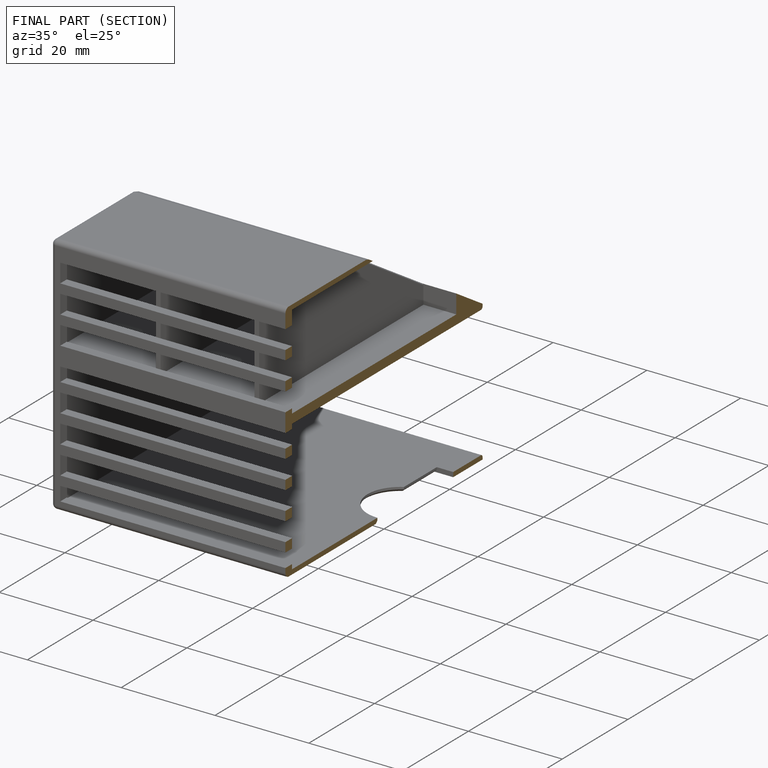
[diagram: finished part — half-section view (interior)]
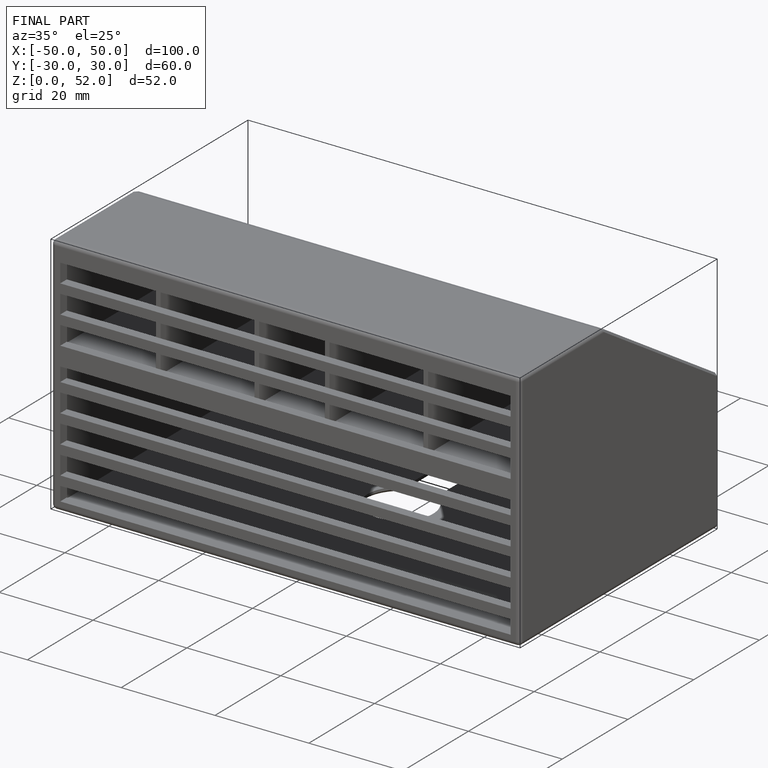
[diagram: finished part — iso view with bounding-box wireframe]
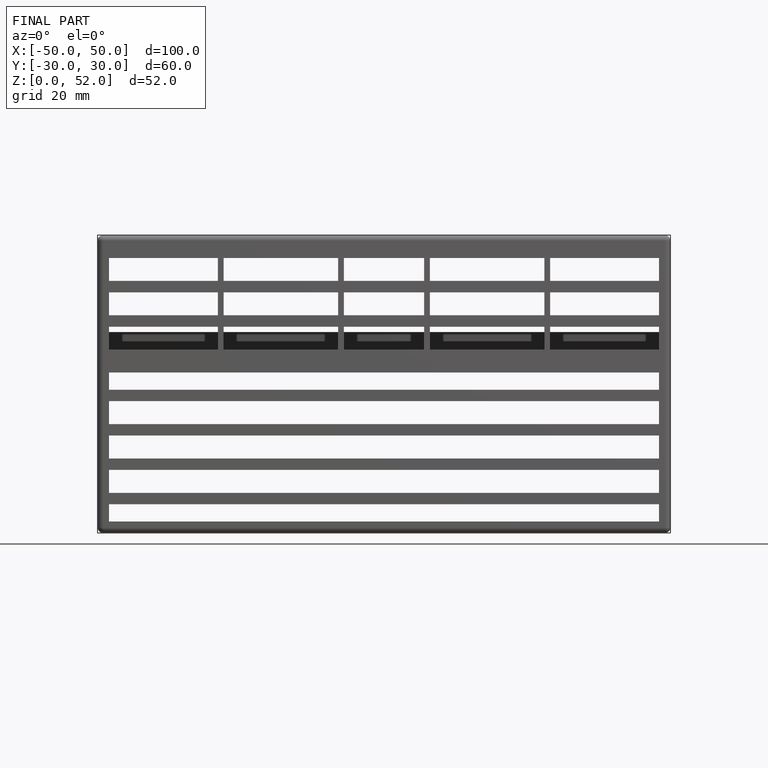
[diagram: finished part — front view with bounding-box wireframe]
